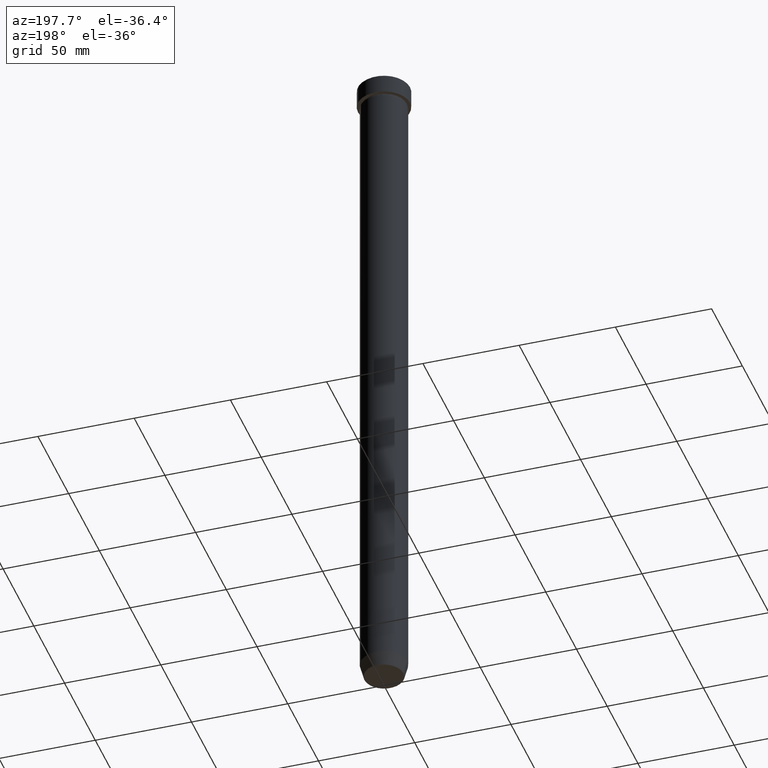
[diagram: clean part render]
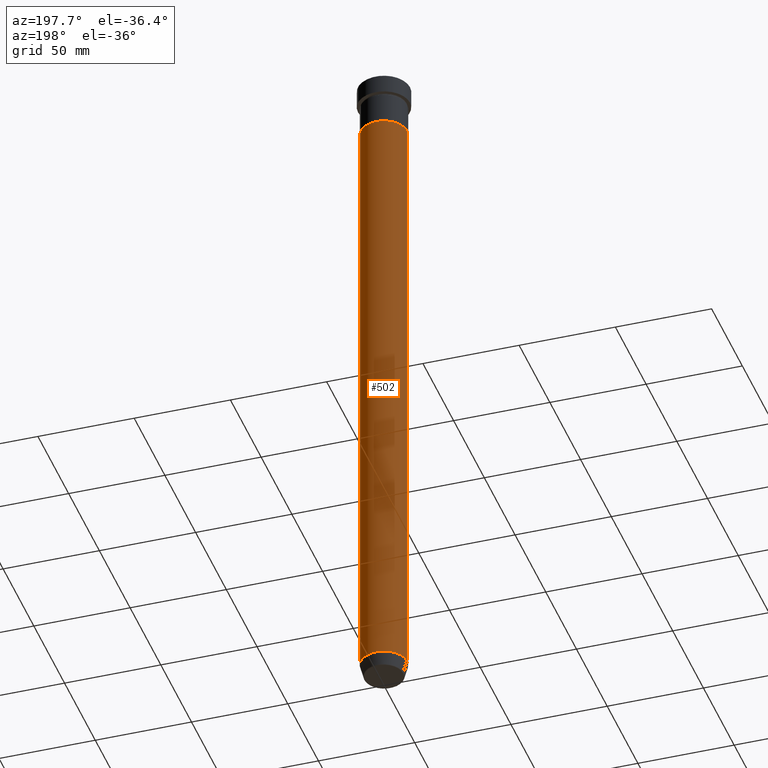
[diagram: same view with one face highlighted and labeled with its STEP entity id]
A machine part, auxiliary view. The second image highlights one B-rep face of the part: STEP entity #502.
In plain terms, the highlighted cylindrical surface (edge-blend (fillet) strip) has radius 12 mm, axis along (-0, -0, 1).
Its self-contained STEP definition (entity closure, byte-faithful):
#15 = DIRECTION ( 'NONE',  ( -0.000000000000000000, -0.000000000000000000, 1.000000000000000000 ) ) ;
#39 = ORIENTED_EDGE ( 'NONE', *, *, #164, .F. ) ;
#49 = VERTEX_POINT ( 'NONE', #89 ) ;
#58 = LINE ( 'NONE', #565, #477 ) ;
#89 = CARTESIAN_POINT ( 'NONE',  ( -12.00000000000000000, 1.469576158976823947E-15, -353.0000000000000568 ) ) ;
#102 = DIRECTION ( 'NONE',  ( 1.000000000000000000, 0.000000000000000000, 0.000000000000000000 ) ) ;
#104 = CYLINDRICAL_SURFACE ( 'NONE', #336, 12.00000000000000000 ) ;
#110 = VECTOR ( 'NONE', #141, 1000.000000000000000 ) ;
#141 = DIRECTION ( 'NONE',  ( -0.000000000000000000, -0.000000000000000000, 1.000000000000000000 ) ) ;
#145 = CIRCLE ( 'NONE', #346, 12.00000000000000000 ) ;
#154 = DIRECTION ( 'NONE',  ( -0.000000000000000000, -0.000000000000000000, 1.000000000000000000 ) ) ;
#164 = EDGE_CURVE ( 'NONE', #489, #227, #315, .T. ) ;
#202 = ORIENTED_EDGE ( 'NONE', *, *, #459, .T. ) ;
#219 = AXIS2_PLACEMENT_3D ( 'NONE', #444, #154, #222 ) ;
#222 = DIRECTION ( 'NONE',  ( 1.000000000000000000, 0.000000000000000000, 0.000000000000000000 ) ) ;
#227 = VERTEX_POINT ( 'NONE', #504 ) ;
#239 = CARTESIAN_POINT ( 'NONE',  ( 0.000000000000000000, 0.000000000000000000, -353.0000000000000568 ) ) ;
#287 = VERTEX_POINT ( 'NONE', #328 ) ;
#315 = CIRCLE ( 'NONE', #219, 12.00000000000000000 ) ;
#328 = CARTESIAN_POINT ( 'NONE',  ( 12.00000000000000000, 0.000000000000000000, -353.0000000000000568 ) ) ;
#336 = AXIS2_PLACEMENT_3D ( 'NONE', #440, #480, #102 ) ;
#346 = AXIS2_PLACEMENT_3D ( 'NONE', #239, #421, #473 ) ;
#349 = CARTESIAN_POINT ( 'NONE',  ( 12.00000000000000000, 0.000000000000000000, -27.00000000000000000 ) ) ;
#378 = EDGE_CURVE ( 'NONE', #287, #49, #145, .T. ) ;
#421 = DIRECTION ( 'NONE',  ( -0.000000000000000000, -0.000000000000000000, 1.000000000000000000 ) ) ;
#440 = CARTESIAN_POINT ( 'NONE',  ( 0.000000000000000000, 0.000000000000000000, 0.000000000000000000 ) ) ;
#444 = CARTESIAN_POINT ( 'NONE',  ( 0.000000000000000000, 0.000000000000000000, -27.00000000000000000 ) ) ;
#459 = EDGE_CURVE ( 'NONE', #49, #227, #58, .T. ) ;
#473 = DIRECTION ( 'NONE',  ( 1.000000000000000000, 0.000000000000000000, 0.000000000000000000 ) ) ;
#477 = VECTOR ( 'NONE', #15, 1000.000000000000000 ) ;
#480 = DIRECTION ( 'NONE',  ( -0.000000000000000000, -0.000000000000000000, 1.000000000000000000 ) ) ;
#489 = VERTEX_POINT ( 'NONE', #349 ) ;
#491 = FACE_OUTER_BOUND ( 'NONE', #525, .T. ) ;
#502 = ADVANCED_FACE ( 'NONE', ( #491 ), #104, .T. ) ;
#504 = CARTESIAN_POINT ( 'NONE',  ( -12.00000000000000000, 1.469576158976823947E-15, -27.00000000000000000 ) ) ;
#525 = EDGE_LOOP ( 'NONE', ( #541, #202, #39, #546 ) ) ;
#532 = CARTESIAN_POINT ( 'NONE',  ( 12.00000000000000000, 0.000000000000000000, 0.000000000000000000 ) ) ;
#541 = ORIENTED_EDGE ( 'NONE', *, *, #378, .T. ) ;
#546 = ORIENTED_EDGE ( 'NONE', *, *, #553, .F. ) ;
#553 = EDGE_CURVE ( 'NONE', #287, #489, #562, .T. ) ;
#562 = LINE ( 'NONE', #532, #110 ) ;
#565 = CARTESIAN_POINT ( 'NONE',  ( -12.00000000000000000, 1.469576158976823947E-15, 0.000000000000000000 ) ) ;